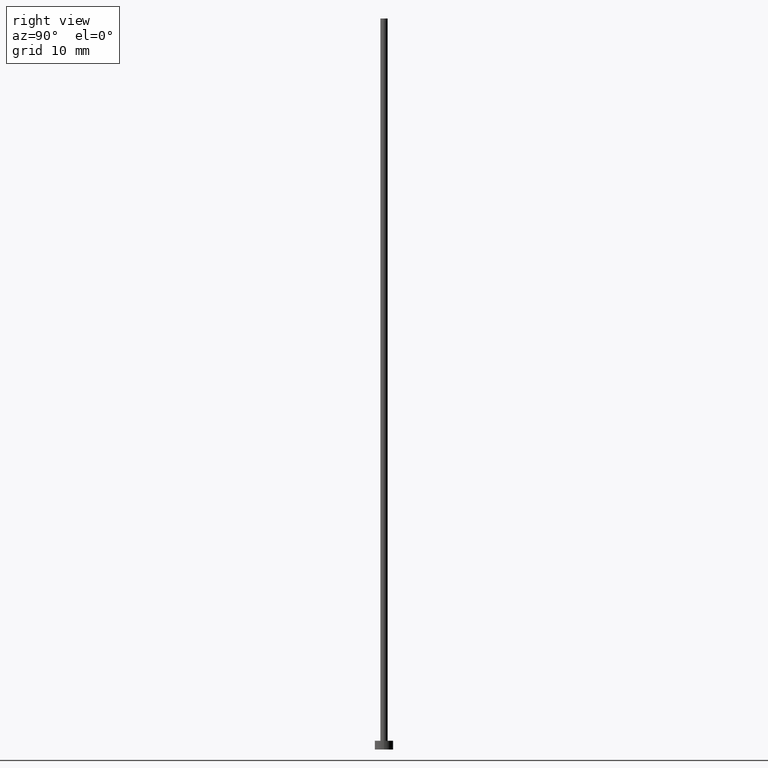
[diagram: clean part render]
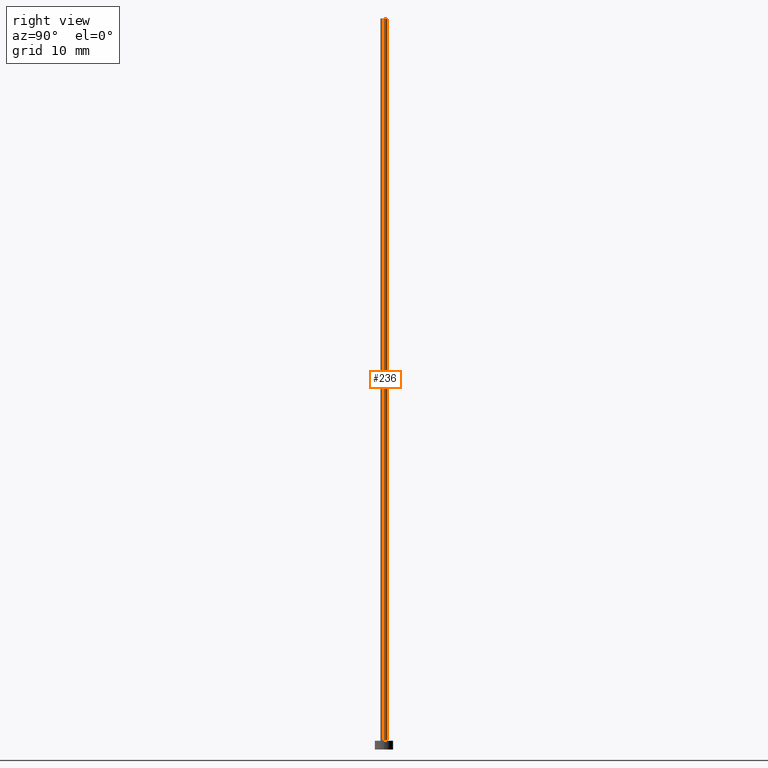
[diagram: same view with one face highlighted and labeled with its STEP entity id]
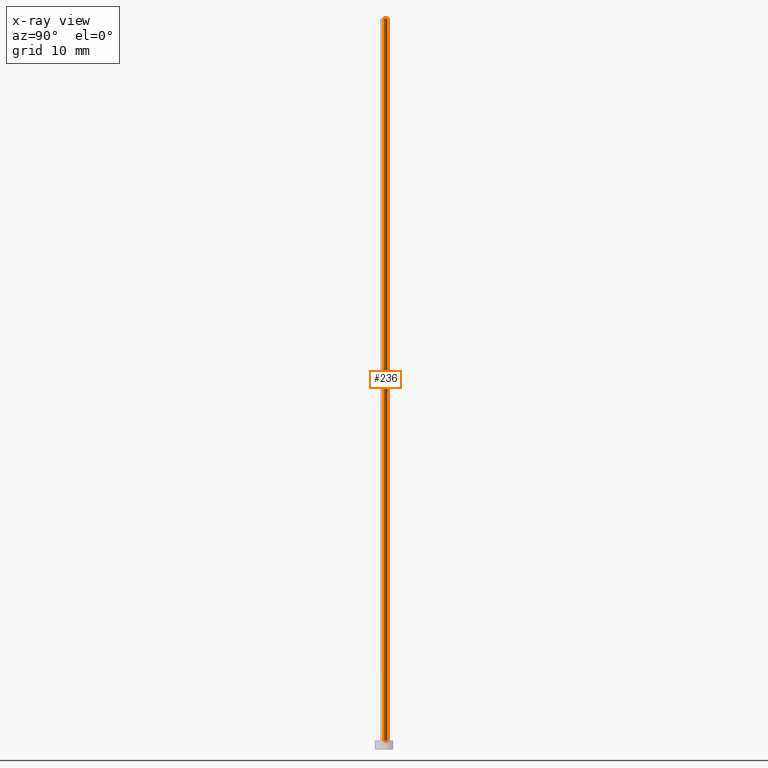
[diagram: x-ray of the same camera — body ghosted, the highlighted face saturated]
A machine part, right view. The second image highlights one B-rep face of the part: STEP entity #236.
The next image is the same camera in x-ray: the body ghosted, the highlighted face saturated — about 0% of this face is hidden behind the body in this view.
In plain terms, the highlighted cylindrical surface (edge-blend (fillet) strip) has radius 0.5 mm, axis along (-0, -0, -1).
Its self-contained STEP definition (entity closure, byte-faithful):
#3 = CARTESIAN_POINT ( 'NONE',  ( 0.000000000000000000, 0.000000000000000000, 100.0000000000000000 ) ) ;
#4 = ORIENTED_EDGE ( 'NONE', *, *, #98, .T. ) ;
#11 = VERTEX_POINT ( 'NONE', #109 ) ;
#16 = EDGE_CURVE ( 'NONE', #11, #26, #21, .T. ) ;
#17 = CIRCLE ( 'NONE', #113, 0.5000000000000000000 ) ;
#21 = LINE ( 'NONE', #175, #135 ) ;
#25 = CARTESIAN_POINT ( 'NONE',  ( 0.000000000000000000, 0.000000000000000000, 100.0000000000000000 ) ) ;
#26 = VERTEX_POINT ( 'NONE', #81 ) ;
#41 = CARTESIAN_POINT ( 'NONE',  ( 0.000000000000000000, 0.000000000000000000, 1.199999999999999956 ) ) ;
#46 = CYLINDRICAL_SURFACE ( 'NONE', #117, 0.5000000000000000000 ) ;
#47 = AXIS2_PLACEMENT_3D ( 'NONE', #25, #219, #215 ) ;
#48 = DIRECTION ( 'NONE',  ( -1.000000000000000000, 0.000000000000000000, 0.000000000000000000 ) ) ;
#67 = LINE ( 'NONE', #156, #212 ) ;
#68 = ORIENTED_EDGE ( 'NONE', *, *, #221, .F. ) ;
#73 = VERTEX_POINT ( 'NONE', #190 ) ;
#81 = CARTESIAN_POINT ( 'NONE',  ( 0.5000000000000000000, 6.123233995736766036E-17, 1.199999999999999956 ) ) ;
#97 = DIRECTION ( 'NONE',  ( -0.000000000000000000, -0.000000000000000000, -1.000000000000000000 ) ) ;
#98 = EDGE_CURVE ( 'NONE', #26, #73, #17, .T. ) ;
#109 = CARTESIAN_POINT ( 'NONE',  ( 0.5000000000000000000, 6.123233995736766036E-17, 100.0000000000000000 ) ) ;
#113 = AXIS2_PLACEMENT_3D ( 'NONE', #41, #206, #187 ) ;
#115 = DIRECTION ( 'NONE',  ( -0.000000000000000000, -0.000000000000000000, -1.000000000000000000 ) ) ;
#117 = AXIS2_PLACEMENT_3D ( 'NONE', #3, #97, #48 ) ;
#135 = VECTOR ( 'NONE', #171, 1000.000000000000000 ) ;
#141 = EDGE_LOOP ( 'NONE', ( #68, #160, #4, #222 ) ) ;
#145 = VERTEX_POINT ( 'NONE', #198 ) ;
#156 = CARTESIAN_POINT ( 'NONE',  ( -0.5000000000000000000, 0.000000000000000000, 100.0000000000000000 ) ) ;
#160 = ORIENTED_EDGE ( 'NONE', *, *, #16, .T. ) ;
#171 = DIRECTION ( 'NONE',  ( -0.000000000000000000, -0.000000000000000000, -1.000000000000000000 ) ) ;
#175 = CARTESIAN_POINT ( 'NONE',  ( 0.5000000000000000000, 6.123233995736766036E-17, 100.0000000000000000 ) ) ;
#187 = DIRECTION ( 'NONE',  ( 1.000000000000000000, 0.000000000000000000, 0.000000000000000000 ) ) ;
#190 = CARTESIAN_POINT ( 'NONE',  ( -0.5000000000000000000, 0.000000000000000000, 1.199999999999999956 ) ) ;
#198 = CARTESIAN_POINT ( 'NONE',  ( -0.5000000000000000000, 0.000000000000000000, 100.0000000000000000 ) ) ;
#206 = DIRECTION ( 'NONE',  ( 0.000000000000000000, 0.000000000000000000, 1.000000000000000000 ) ) ;
#211 = FACE_OUTER_BOUND ( 'NONE', #141, .T. ) ;
#212 = VECTOR ( 'NONE', #115, 1000.000000000000000 ) ;
#214 = EDGE_CURVE ( 'NONE', #145, #73, #67, .T. ) ;
#215 = DIRECTION ( 'NONE',  ( 1.000000000000000000, 0.000000000000000000, 0.000000000000000000 ) ) ;
#219 = DIRECTION ( 'NONE',  ( 0.000000000000000000, 0.000000000000000000, 1.000000000000000000 ) ) ;
#221 = EDGE_CURVE ( 'NONE', #11, #145, #225, .T. ) ;
#222 = ORIENTED_EDGE ( 'NONE', *, *, #214, .F. ) ;
#225 = CIRCLE ( 'NONE', #47, 0.5000000000000000000 ) ;
#236 = ADVANCED_FACE ( 'NONE', ( #211 ), #46, .T. ) ;